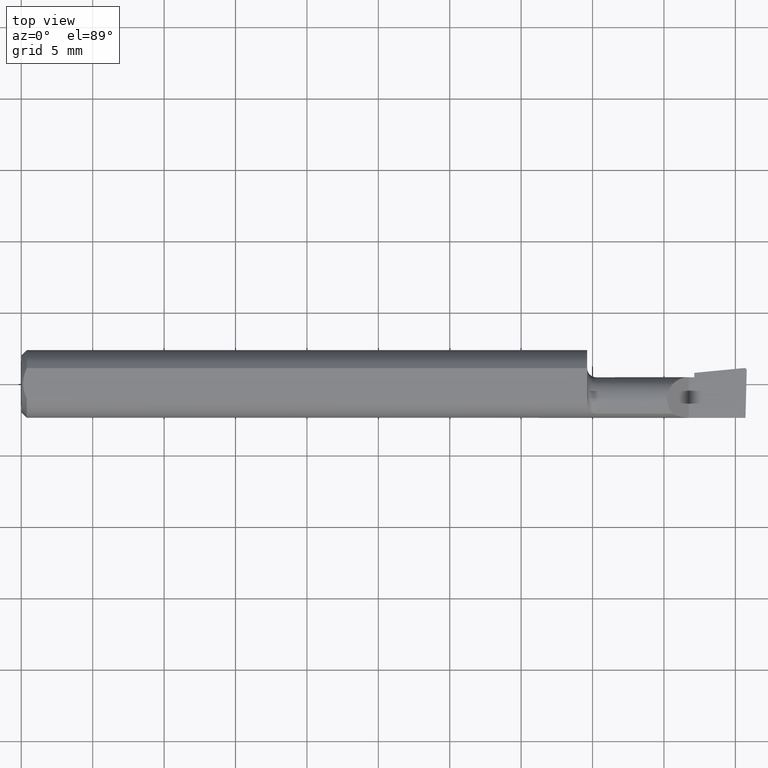
[diagram: clean part render]
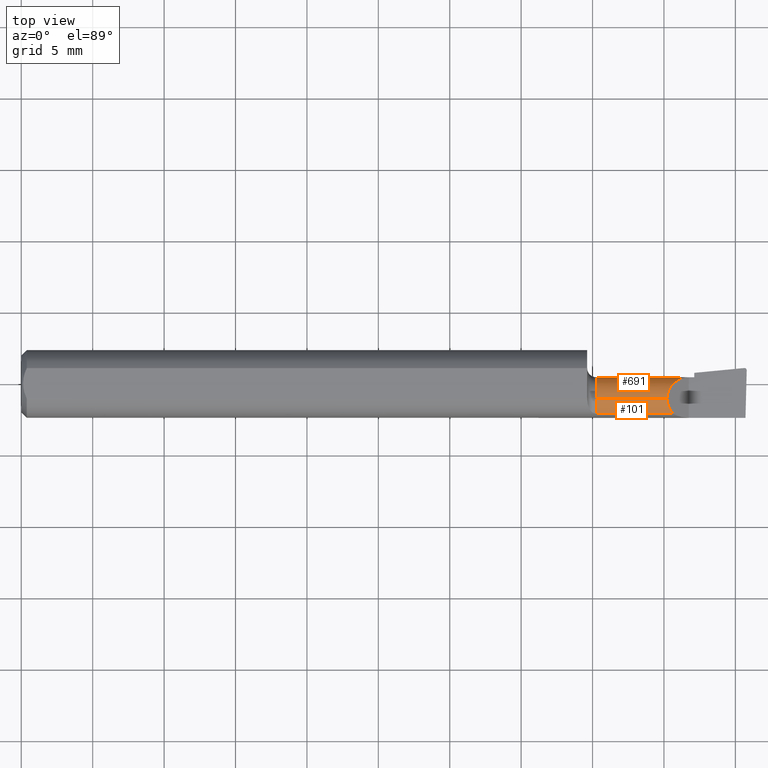
[diagram: same view with one multi-face feature highlighted, each face labeled with its STEP entity id]
A machine part, top view. The highlighted faces form ONE feature: a constant-radius fillet chain: 2 tangent blend faces with common blend radius 1.5215 mm. The faces share edges in the B-rep.
Their STEP definitions:
[1] entity #691 (Cylinder):
#4 = DIRECTION ( 'NONE',  ( 0.0000000000000000000, 0.0000000000000000000, 1.000000000000000000 ) ) ;
#23 = ORIENTED_EDGE ( 'NONE', *, *, #240, .T. ) ;
#53 = CARTESIAN_POINT ( 'NONE',  ( 0.0000000000000000000, -0.04149999999999999523, -0.05989999999999998798 ) ) ;
#71 = CARTESIAN_POINT ( 'NONE',  ( 1.804911392386147506, 0.01839999999999998234, 0.03508860761385160232 ) ) ;
#97 = DIRECTION ( 'NONE',  ( -1.000000000000000000, -0.0000000000000000000, -0.0000000000000000000 ) ) ;
#118 = LINE ( 'NONE', #625, #247 ) ;
#121 = VERTEX_POINT ( 'NONE', #209 ) ;
#140 = VERTEX_POINT ( 'NONE', #189 ) ;
#174 = DIRECTION ( 'NONE',  ( 0.0000000000000000000, 0.0000000000000000000, 1.000000000000000000 ) ) ;
#189 = CARTESIAN_POINT ( 'NONE',  ( 1.840000000000000080, 0.01839999999999989908, 1.959434878635762025E-17 ) ) ;
#201 = VERTEX_POINT ( 'NONE', #269 ) ;
#207 = VERTEX_POINT ( 'NONE', #616 ) ;
#209 = CARTESIAN_POINT ( 'NONE',  ( 1.854999999999999982, -0.04150000000000000216, -0.05990000000000000185 ) ) ;
#210 = DIRECTION ( 'NONE',  ( -1.000000000000000000, -0.0000000000000000000, -0.0000000000000000000 ) ) ;
#213 = ORIENTED_EDGE ( 'NONE', *, *, #666, .T. ) ;
#230 = CARTESIAN_POINT ( 'NONE',  ( 0.0000000000000000000, -0.04150000000000000216, 0.0000000000000000000 ) ) ;
#240 = EDGE_CURVE ( 'NONE', #121, #201, #540, .T. ) ;
#247 = VECTOR ( 'NONE', #726, 39.37007874015748143 ) ;
#269 = CARTESIAN_POINT ( 'NONE',  ( 1.584999999999999964, -0.04149999999999999523, -0.05989999999999998104 ) ) ;
#275 = CARTESIAN_POINT ( 'NONE',  ( 1.780099999999999349, -0.04150000000000000216, 0.05989999999999998798 ) ) ;
#277 = EDGE_CURVE ( 'NONE', #586, #121, #729, .T. ) ;
#282 = DIRECTION ( 'NONE',  ( -1.000000000000000000, -0.0000000000000000000, -0.0000000000000000000 ) ) ;
#299 = CARTESIAN_POINT ( 'NONE',  ( 0.0000000000000000000, -0.04150000000000000216, 0.05989999999999998798 ) ) ;
#312 = ORIENTED_EDGE ( 'NONE', *, *, #459, .F. ) ;
#333 = ORIENTED_EDGE ( 'NONE', *, *, #277, .T. ) ;
#363 = DIRECTION ( 'NONE',  ( -1.000000000000000000, -0.0000000000000000000, -0.0000000000000000000 ) ) ;
#412 = DIRECTION ( 'NONE',  ( -1.000000000000000000, -0.0000000000000000000, -0.0000000000000000000 ) ) ;
#430 = CARTESIAN_POINT ( 'NONE',  ( 1.780099999999999349, -0.04150000000000000216, 0.05989999999999998798 ) ) ;
#431 = VERTEX_POINT ( 'NONE', #275 ) ;
#434 = CARTESIAN_POINT ( 'NONE',  ( 1.780099999999999349, -0.006411392386148404184, 0.05989999999999998104 ) ) ;
#435 = CARTESIAN_POINT ( 'NONE',  ( 1.854999999999999982, -0.04150000000000000216, 0.0000000000000000000 ) ) ;
#446 = DIRECTION ( 'NONE',  ( 0.0000000000000000000, 0.0000000000000000000, 1.000000000000000000 ) ) ;
#447 = CYLINDRICAL_SURFACE ( 'NONE', #689, 0.05989999999999998798 ) ;
#459 = EDGE_CURVE ( 'NONE', #431, #207, #686, .T. ) ;
#466 = VECTOR ( 'NONE', #412, 39.37007874015748143 ) ;
#508 = FACE_OUTER_BOUND ( 'NONE', #595, .T. ) ;
#512 = CARTESIAN_POINT ( 'NONE',  ( 1.584999999999999964, -0.04150000000000000216, 0.0000000000000000000 ) ) ;
#514 = AXIS2_PLACEMENT_3D ( 'NONE', #512, #210, #4 ) ;
#540 = LINE ( 'NONE', #53, #621 ) ;
#552 = CARTESIAN_POINT ( 'NONE',  ( 1.854999999999999982, 0.01839999999999999969, 1.030335658007946440E-15 ) ) ;
#566 = EDGE_CURVE ( 'NONE', #207, #201, #631, .T. ) ;
#586 = VERTEX_POINT ( 'NONE', #552 ) ;
#595 = EDGE_LOOP ( 'NONE', ( #333, #23, #606, #312, #213, #642 ) ) ;
#606 = ORIENTED_EDGE ( 'NONE', *, *, #566, .F. ) ;
#611 =( BOUNDED_CURVE ( )  B_SPLINE_CURVE ( 3, ( #430, #434, #71, #638 ),
 .UNSPECIFIED., .F., .F. ) 
 B_SPLINE_CURVE_WITH_KNOTS ( ( 4, 4 ),
 ( 0.0000000000000000000, 1.570796326794896558 ),
 .UNSPECIFIED. ) 
 CURVE ( )  GEOMETRIC_REPRESENTATION_ITEM ( )  RATIONAL_B_SPLINE_CURVE ( ( 1.000000000000000000, 0.8047378541243649375, 0.8047378541243649375, 1.000000000000000000 ) ) 
 REPRESENTATION_ITEM ( '' )  );
#616 = CARTESIAN_POINT ( 'NONE',  ( 1.584999999999999964, -0.04150000000000000216, 0.05989999999999998104 ) ) ;
#617 = AXIS2_PLACEMENT_3D ( 'NONE', #435, #363, #446 ) ;
#621 = VECTOR ( 'NONE', #97, 39.37007874015748143 ) ;
#625 = CARTESIAN_POINT ( 'NONE',  ( 5.659797890829555466E-31, 0.01839999999999997540, 1.030335658007946046E-15 ) ) ;
#631 = CIRCLE ( 'NONE', #514, 0.05989999999999997410 ) ;
#638 = CARTESIAN_POINT ( 'NONE',  ( 1.840000000000000080, 0.01839999999999989908, 1.959434878635762025E-17 ) ) ;
#639 = EDGE_CURVE ( 'NONE', #140, #586, #118, .T. ) ;
#642 = ORIENTED_EDGE ( 'NONE', *, *, #639, .T. ) ;
#666 = EDGE_CURVE ( 'NONE', #431, #140, #611, .T. ) ;
#686 = LINE ( 'NONE', #299, #466 ) ;
#689 = AXIS2_PLACEMENT_3D ( 'NONE', #230, #282, #174 ) ;
#691 = ADVANCED_FACE ( 'NONE', ( #508 ), #447, .T. ) ;
#726 = DIRECTION ( 'NONE',  ( 1.000000000000000000, 0.0000000000000000000, 0.0000000000000000000 ) ) ;
#729 = CIRCLE ( 'NONE', #617, 0.05990000000000000185 ) ;
[2] entity #101 (Cylinder):
#92 = CARTESIAN_POINT ( 'NONE',  ( 1.780099999999999349, -0.05720488466914005338, 0.05989999999999997410 ) ) ;
#101 = ADVANCED_FACE ( 'NONE', ( #710 ), #389, .T. ) ;
#142 = CARTESIAN_POINT ( 'NONE',  ( 1.796877448822106649, -0.08307469879518077083, 0.04312255117789291076 ) ) ;
#147 = CARTESIAN_POINT ( 'NONE',  ( 1.785977184218892067, -0.07176861043311237587, 0.05402281578110743054 ) ) ;
#151 = EDGE_CURVE ( 'NONE', #448, #431, #354, .T. ) ;
#165 = CARTESIAN_POINT ( 'NONE',  ( 1.719999999999999973, -0.08307469879518075695, 0.04312255117789293157 ) ) ;
#207 = VERTEX_POINT ( 'NONE', #616 ) ;
#238 = VECTOR ( 'NONE', #463, 39.37007874015748143 ) ;
#275 = CARTESIAN_POINT ( 'NONE',  ( 1.780099999999999349, -0.04150000000000000216, 0.05989999999999998798 ) ) ;
#287 = EDGE_CURVE ( 'NONE', #594, #448, #683, .T. ) ;
#299 = CARTESIAN_POINT ( 'NONE',  ( 0.0000000000000000000, -0.04150000000000000216, 0.05989999999999998798 ) ) ;
#307 = CARTESIAN_POINT ( 'NONE',  ( 0.0000000000000000000, -0.04150000000000000216, 0.0000000000000000000 ) ) ;
#351 = CIRCLE ( 'NONE', #582, 0.05989999999999997410 ) ;
#354 =( BOUNDED_CURVE ( )  B_SPLINE_CURVE ( 3, ( #142, #147, #92, #494 ),
 .UNSPECIFIED., .F., .T. ) 
 B_SPLINE_CURVE_WITH_KNOTS ( ( 4, 4 ),
 ( 5.516060229395657544, 6.283185307179586232 ),
 .UNSPECIFIED. ) 
 CURVE ( )  GEOMETRIC_REPRESENTATION_ITEM ( )  RATIONAL_B_SPLINE_CURVE ( ( 1.000000000000000000, 0.9515582177473689285, 0.9515582177473689285, 1.000000000000000000 ) ) 
 REPRESENTATION_ITEM ( '' )  );
#356 = DIRECTION ( 'NONE',  ( -1.000000000000000000, -0.0000000000000000000, -0.0000000000000000000 ) ) ;
#389 = CYLINDRICAL_SURFACE ( 'NONE', #698, 0.05989999999999998798 ) ;
#399 = ORIENTED_EDGE ( 'NONE', *, *, #410, .F. ) ;
#410 = EDGE_CURVE ( 'NONE', #594, #207, #351, .T. ) ;
#412 = DIRECTION ( 'NONE',  ( -1.000000000000000000, -0.0000000000000000000, -0.0000000000000000000 ) ) ;
#431 = VERTEX_POINT ( 'NONE', #275 ) ;
#442 = EDGE_LOOP ( 'NONE', ( #660, #541, #399, #614 ) ) ;
#448 = VERTEX_POINT ( 'NONE', #684 ) ;
#459 = EDGE_CURVE ( 'NONE', #431, #207, #686, .T. ) ;
#463 = DIRECTION ( 'NONE',  ( 1.000000000000000000, 0.0000000000000000000, 0.0000000000000000000 ) ) ;
#464 = DIRECTION ( 'NONE',  ( 0.0000000000000000000, 0.0000000000000000000, 1.000000000000000000 ) ) ;
#466 = VECTOR ( 'NONE', #412, 39.37007874015748143 ) ;
#494 = CARTESIAN_POINT ( 'NONE',  ( 1.780099999999999349, -0.04150000000000000216, 0.05989999999999998798 ) ) ;
#541 = ORIENTED_EDGE ( 'NONE', *, *, #459, .T. ) ;
#582 = AXIS2_PLACEMENT_3D ( 'NONE', #654, #652, #629 ) ;
#594 = VERTEX_POINT ( 'NONE', #671 ) ;
#614 = ORIENTED_EDGE ( 'NONE', *, *, #287, .T. ) ;
#616 = CARTESIAN_POINT ( 'NONE',  ( 1.584999999999999964, -0.04150000000000000216, 0.05989999999999998104 ) ) ;
#629 = DIRECTION ( 'NONE',  ( 0.0000000000000000000, 0.0000000000000000000, 1.000000000000000000 ) ) ;
#652 = DIRECTION ( 'NONE',  ( -1.000000000000000000, -0.0000000000000000000, -0.0000000000000000000 ) ) ;
#654 = CARTESIAN_POINT ( 'NONE',  ( 1.584999999999999964, -0.04150000000000000216, 0.0000000000000000000 ) ) ;
#660 = ORIENTED_EDGE ( 'NONE', *, *, #151, .T. ) ;
#671 = CARTESIAN_POINT ( 'NONE',  ( 1.584999999999999964, -0.08307469879518060429, 0.04312255117789304260 ) ) ;
#683 = LINE ( 'NONE', #165, #238 ) ;
#684 = CARTESIAN_POINT ( 'NONE',  ( 1.796877448822106649, -0.08307469879518077083, 0.04312255117789291076 ) ) ;
#686 = LINE ( 'NONE', #299, #466 ) ;
#698 = AXIS2_PLACEMENT_3D ( 'NONE', #307, #356, #464 ) ;
#710 = FACE_OUTER_BOUND ( 'NONE', #442, .T. ) ;